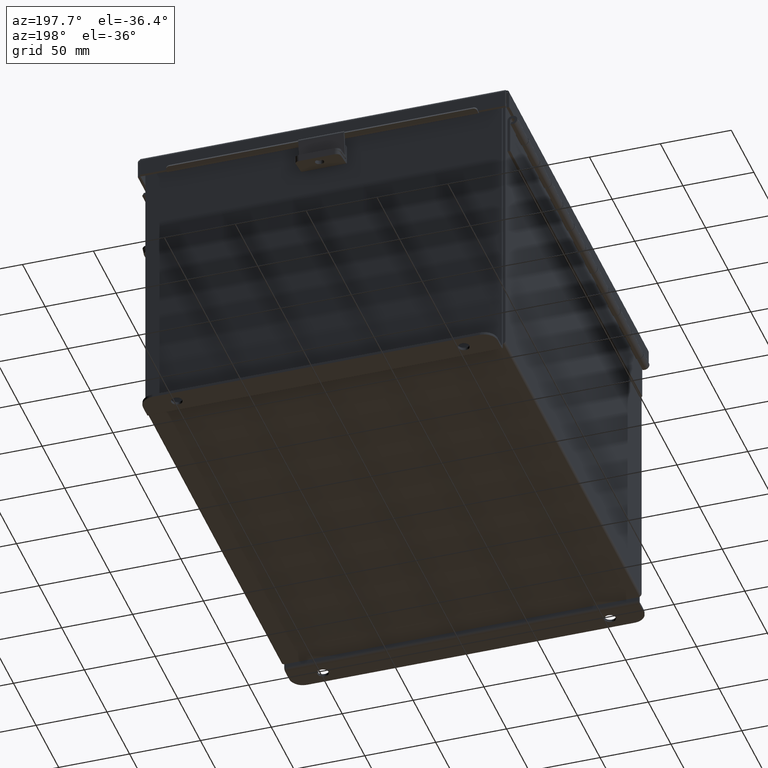
[diagram: clean part render]
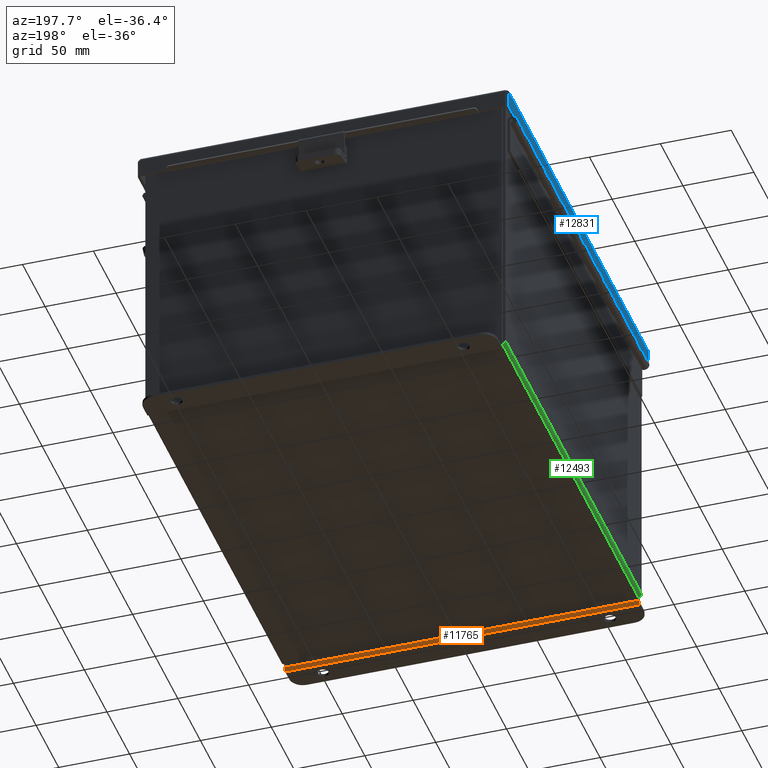
[diagram: same view with three faces highlighted in distinct colors, each labeled with its STEP entity id]
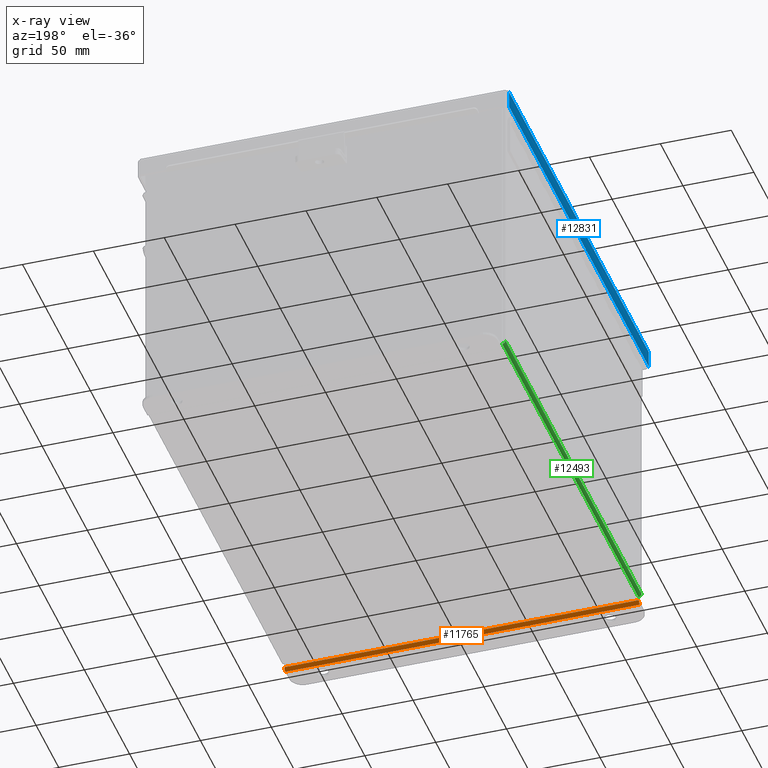
[diagram: x-ray of the same camera — body ghosted, the three highlighted faces saturated]
A machine part, auxiliary view with three faces highlighted in distinct colors.
The next image is the same camera in x-ray (body ghosted, the three faces saturated) — at least one of them is partly hidden behind the body in this view.
Their STEP definitions:

[orange] entity #11765 — the highlighted cylindrical surface (edge-blend (fillet) strip) has radius 2.2276 mm, axis along (1, 0, -0).
#55 = EDGE_CURVE ( 'NONE', #1955, #14046, #11184, .T. ) ;
#739 = DIRECTION ( 'NONE',  ( 1.000000000000000000, 4.910036603141682400E-031, -0.0000000000000000000 ) ) ;
#815 = CIRCLE ( 'NONE', #17348, 0.08770000000000026400 ) ;
#1955 = VERTEX_POINT ( 'NONE', #3723 ) ;
#2676 = DIRECTION ( 'NONE',  ( -1.000000000000000000, -4.910036603141682400E-031, 0.0000000000000000000 ) ) ;
#3151 = CARTESIAN_POINT ( 'NONE',  ( -4.925300000000000000, -0.07470000000000015500, -4.099299999999999500 ) ) ;
#3429 = EDGE_CURVE ( 'NONE', #12807, #6555, #16034, .T. ) ;
#3723 = CARTESIAN_POINT ( 'NONE',  ( -4.925299999999999100, -0.07470000000000015500, -4.099299999999999500 ) ) ;
#5619 = VECTOR ( 'NONE', #14382, 39.37007874015748100 ) ;
#5686 = ORIENTED_EDGE ( 'NONE', *, *, #3429, .T. ) ;
#5878 = DIRECTION ( 'NONE',  ( 1.000000000000000000, 4.910036603141682400E-031, -0.0000000000000000000 ) ) ;
#6555 = VERTEX_POINT ( 'NONE', #15727 ) ;
#7545 = VECTOR ( 'NONE', #739, 39.37007874015748100 ) ;
#8078 = CYLINDRICAL_SURFACE ( 'NONE', #11988, 0.08770000000000026400 ) ;
#8213 = ORIENTED_EDGE ( 'NONE', *, *, #10631, .F. ) ;
#8238 = CARTESIAN_POINT ( 'NONE',  ( -4.925300000000000000, 0.01300000000000010700, -4.099299999999999500 ) ) ;
#9516 = CIRCLE ( 'NONE', #12599, 0.08770000000000026400 ) ;
#10476 = CARTESIAN_POINT ( 'NONE',  ( 4.925300000000000000, -0.07469999999999142600, -4.099299999999999500 ) ) ;
#10631 = EDGE_CURVE ( 'NONE', #12807, #1955, #815, .T. ) ;
#10794 = CARTESIAN_POINT ( 'NONE',  ( -4.925299999999999100, 0.01300000000000010700, -4.099299999999999500 ) ) ;
#11064 = CARTESIAN_POINT ( 'NONE',  ( -4.925300000000008000, 0.01300000000000120000, -4.187000000000000300 ) ) ;
#11184 = LINE ( 'NONE', #3151, #7545 ) ;
#11765 = ADVANCED_FACE ( 'NONE', ( #15325 ), #8078, .T. ) ;
#11988 = AXIS2_PLACEMENT_3D ( 'NONE', #8238, #12336, #16412 ) ;
#12186 = DIRECTION ( 'NONE',  ( 0.0000000000000000000, 0.0000000000000000000, 1.000000000000000000 ) ) ;
#12336 = DIRECTION ( 'NONE',  ( -1.000000000000000000, -4.910036603141682400E-031, 0.0000000000000000000 ) ) ;
#12599 = AXIS2_PLACEMENT_3D ( 'NONE', #14021, #5878, #15406 ) ;
#12807 = VERTEX_POINT ( 'NONE', #11064 ) ;
#13747 = ORIENTED_EDGE ( 'NONE', *, *, #15333, .F. ) ;
#14021 = CARTESIAN_POINT ( 'NONE',  ( 4.925300000000000000, 0.01300000000000885000, -4.099299999999999500 ) ) ;
#14046 = VERTEX_POINT ( 'NONE', #10476 ) ;
#14078 = EDGE_LOOP ( 'NONE', ( #15859, #8213, #5686, #13747 ) ) ;
#14382 = DIRECTION ( 'NONE',  ( 1.000000000000000000, 4.910036603141682400E-031, -0.0000000000000000000 ) ) ;
#15325 = FACE_OUTER_BOUND ( 'NONE', #14078, .T. ) ;
#15333 = EDGE_CURVE ( 'NONE', #14046, #6555, #9516, .T. ) ;
#15406 = DIRECTION ( 'NONE',  ( 0.0000000000000000000, 0.0000000000000000000, 1.000000000000000000 ) ) ;
#15727 = CARTESIAN_POINT ( 'NONE',  ( 4.925299999999991100, 0.01300000000000885000, -4.187000000000000300 ) ) ;
#15859 = ORIENTED_EDGE ( 'NONE', *, *, #55, .F. ) ;
#16034 = LINE ( 'NONE', #16572, #5619 ) ;
#16412 = DIRECTION ( 'NONE',  ( 0.0000000000000000000, -3.699053013085864000E-015, -1.000000000000000000 ) ) ;
#16572 = CARTESIAN_POINT ( 'NONE',  ( 4.925299999999991100, 0.01300000000000885000, -4.187000000000000300 ) ) ;
#17348 = AXIS2_PLACEMENT_3D ( 'NONE', #10794, #2676, #12186 ) ;

[blue] entity #12831 — the highlighted planar face has unit normal (1, -0, 0).
#1242 = VERTEX_POINT ( 'NONE', #15519 ) ;
#2137 = CARTESIAN_POINT ( 'NONE',  ( 5.156250000000000900, 6.074478932188137400, 0.01299999999999978100 ) ) ;
#2373 = VERTEX_POINT ( 'NONE', #6346 ) ;
#2673 = EDGE_LOOP ( 'NONE', ( #15950, #3198, #4456, #14057 ) ) ;
#2972 = DIRECTION ( 'NONE',  ( 0.0000000000000000000, -1.000000000000000000, 0.0000000000000000000 ) ) ;
#3198 = ORIENTED_EDGE ( 'NONE', *, *, #15164, .T. ) ;
#3553 = VERTEX_POINT ( 'NONE', #2137 ) ;
#4456 = ORIENTED_EDGE ( 'NONE', *, *, #7919, .T. ) ;
#4613 = EDGE_CURVE ( 'NONE', #3553, #14399, #5107, .T. ) ;
#4821 = LINE ( 'NONE', #13691, #11634 ) ;
#5107 = LINE ( 'NONE', #5156, #7445 ) ;
#5156 = CARTESIAN_POINT ( 'NONE',  ( 5.156250000000000900, -6.156249999999997300, 0.01299999999999978100 ) ) ;
#5675 = DIRECTION ( 'NONE',  ( -0.0000000000000000000, -1.000000000000000000, -0.0000000000000000000 ) ) ;
#6346 = CARTESIAN_POINT ( 'NONE',  ( 5.156250000000003600, -6.074478932188134700, 0.4872999999999997300 ) ) ;
#7445 = VECTOR ( 'NONE', #5675, 39.37007874015748100 ) ;
#7919 = EDGE_CURVE ( 'NONE', #1242, #2373, #16828, .T. ) ;
#8444 = DIRECTION ( 'NONE',  ( 4.484872552701437800E-015, 0.0000000000000000000, 1.000000000000000000 ) ) ;
#9224 = CARTESIAN_POINT ( 'NONE',  ( 5.156250000000000900, -6.074478932188134700, -3.350199796867981300E-016 ) ) ;
#11515 = VECTOR ( 'NONE', #17406, 39.37007874015748100 ) ;
#11634 = VECTOR ( 'NONE', #15061, 39.37007874015748100 ) ;
#11946 = LINE ( 'NONE', #9224, #11515 ) ;
#12494 = CARTESIAN_POINT ( 'NONE',  ( 5.156250000000000900, -6.074478932188134700, 0.01299999999999977400 ) ) ;
#12831 = ADVANCED_FACE ( 'NONE', ( #16192 ), #13874, .F. ) ;
#13487 = AXIS2_PLACEMENT_3D ( 'NONE', #15245, #16621, #8444 ) ;
#13615 = VECTOR ( 'NONE', #2972, 39.37007874015748100 ) ;
#13691 = CARTESIAN_POINT ( 'NONE',  ( 5.156250000000000900, 6.074478932188137400, -2.338593775587838000E-014 ) ) ;
#13849 = CARTESIAN_POINT ( 'NONE',  ( 5.156250000000003600, 0.0000000000000000000, 0.4872999999999997300 ) ) ;
#13874 = PLANE ( 'NONE',  #13487 ) ;
#14057 = ORIENTED_EDGE ( 'NONE', *, *, #16656, .F. ) ;
#14399 = VERTEX_POINT ( 'NONE', #12494 ) ;
#15061 = DIRECTION ( 'NONE',  ( 4.484872552701437800E-015, 0.0000000000000000000, 1.000000000000000000 ) ) ;
#15164 = EDGE_CURVE ( 'NONE', #3553, #1242, #4821, .T. ) ;
#15245 = CARTESIAN_POINT ( 'NONE',  ( 5.156250000000000900, 0.0000000000000000000, -2.338593775587838000E-014 ) ) ;
#15519 = CARTESIAN_POINT ( 'NONE',  ( 5.156250000000003600, 6.074478932188137400, 0.4872999999999997300 ) ) ;
#15950 = ORIENTED_EDGE ( 'NONE', *, *, #4613, .F. ) ;
#16192 = FACE_OUTER_BOUND ( 'NONE', #2673, .T. ) ;
#16621 = DIRECTION ( 'NONE',  ( -1.000000000000000000, 0.0000000000000000000, 4.484872552701437800E-015 ) ) ;
#16656 = EDGE_CURVE ( 'NONE', #14399, #2373, #11946, .T. ) ;
#16828 = LINE ( 'NONE', #13849, #13615 ) ;
#17406 = DIRECTION ( 'NONE',  ( 4.484872552701437800E-015, -0.0000000000000000000, 1.000000000000000000 ) ) ;

[green] entity #12493 — the highlighted cylindrical surface (edge-blend (fillet) strip) has radius 2.2276 mm, axis along (0, -1, 0).
#830 = ORIENTED_EDGE ( 'NONE', *, *, #17697, .F. ) ;
#1002 = CIRCLE ( 'NONE', #6685, 0.08770000000000009700 ) ;
#1190 = EDGE_LOOP ( 'NONE', ( #5125, #830, #15968, #16154 ) ) ;
#1359 = CARTESIAN_POINT ( 'NONE',  ( -4.912300000000000100, -5.925300000000000000, -0.07469999999999994700 ) ) ;
#1845 = CARTESIAN_POINT ( 'NONE',  ( -4.912300000000000100, -5.925299999999999100, -0.07469999999999994700 ) ) ;
#2778 = DIRECTION ( 'NONE',  ( -0.0000000000000000000, 1.000000000000000000, -0.0000000000000000000 ) ) ;
#3006 = LINE ( 'NONE', #1359, #13405 ) ;
#3223 = CARTESIAN_POINT ( 'NONE',  ( -5.000000000000000000, 5.925300000000000000, 0.01299999999999984300 ) ) ;
#3764 = CYLINDRICAL_SURFACE ( 'NONE', #16493, 0.08770000000000026400 ) ;
#4207 = CARTESIAN_POINT ( 'NONE',  ( -4.912300000000000100, 5.925300000000000000, 0.01300000000000015000 ) ) ;
#4298 = CARTESIAN_POINT ( 'NONE',  ( -4.912300000000000100, 5.925300000000000000, -0.07470000000000000300 ) ) ;
#4845 = DIRECTION ( 'NONE',  ( 0.0000000000000000000, -1.000000000000000000, 0.0000000000000000000 ) ) ;
#5125 = ORIENTED_EDGE ( 'NONE', *, *, #8523, .F. ) ;
#5172 = DIRECTION ( 'NONE',  ( -0.0000000000000000000, 1.000000000000000000, -0.0000000000000000000 ) ) ;
#5286 = DIRECTION ( 'NONE',  ( 0.0000000000000000000, 0.0000000000000000000, -1.000000000000000000 ) ) ;
#5649 = EDGE_CURVE ( 'NONE', #14357, #12385, #1002, .T. ) ;
#6113 = EDGE_CURVE ( 'NONE', #15864, #12385, #9417, .T. ) ;
#6685 = AXIS2_PLACEMENT_3D ( 'NONE', #4207, #5172, #5286 ) ;
#6745 = VERTEX_POINT ( 'NONE', #1845 ) ;
#7670 = DIRECTION ( 'NONE',  ( -1.000000000000000000, 0.0000000000000000000, -3.480030137311043200E-015 ) ) ;
#8523 = EDGE_CURVE ( 'NONE', #6745, #14357, #3006, .T. ) ;
#8564 = VECTOR ( 'NONE', #12604, 39.37007874015748100 ) ;
#9417 = LINE ( 'NONE', #3223, #8564 ) ;
#9890 = AXIS2_PLACEMENT_3D ( 'NONE', #13006, #4845, #14371 ) ;
#10237 = CARTESIAN_POINT ( 'NONE',  ( -5.000000000000000000, 5.925300000000000000, 0.01299999999999984300 ) ) ;
#11777 = DIRECTION ( 'NONE',  ( 0.0000000000000000000, -1.000000000000000000, 0.0000000000000000000 ) ) ;
#12385 = VERTEX_POINT ( 'NONE', #10237 ) ;
#12493 = ADVANCED_FACE ( 'NONE', ( #14639 ), #3764, .T. ) ;
#12604 = DIRECTION ( 'NONE',  ( -0.0000000000000000000, 1.000000000000000000, -0.0000000000000000000 ) ) ;
#13006 = CARTESIAN_POINT ( 'NONE',  ( -4.912300000000000100, -5.925299999999999100, 0.01300000000000015000 ) ) ;
#13077 = CARTESIAN_POINT ( 'NONE',  ( -4.912300000000000100, -5.925300000000000000, 0.01300000000000015000 ) ) ;
#13405 = VECTOR ( 'NONE', #2778, 39.37007874015748100 ) ;
#13662 = CARTESIAN_POINT ( 'NONE',  ( -5.000000000000000000, -5.925299999999999100, 0.01299999999999984300 ) ) ;
#14357 = VERTEX_POINT ( 'NONE', #4298 ) ;
#14371 = DIRECTION ( 'NONE',  ( 0.0000000000000000000, 0.0000000000000000000, -1.000000000000000000 ) ) ;
#14639 = FACE_OUTER_BOUND ( 'NONE', #1190, .T. ) ;
#15526 = CIRCLE ( 'NONE', #9890, 0.08770000000000009700 ) ;
#15864 = VERTEX_POINT ( 'NONE', #13662 ) ;
#15968 = ORIENTED_EDGE ( 'NONE', *, *, #6113, .T. ) ;
#16154 = ORIENTED_EDGE ( 'NONE', *, *, #5649, .F. ) ;
#16493 = AXIS2_PLACEMENT_3D ( 'NONE', #13077, #11777, #7670 ) ;
#17697 = EDGE_CURVE ( 'NONE', #15864, #6745, #15526, .T. ) ;